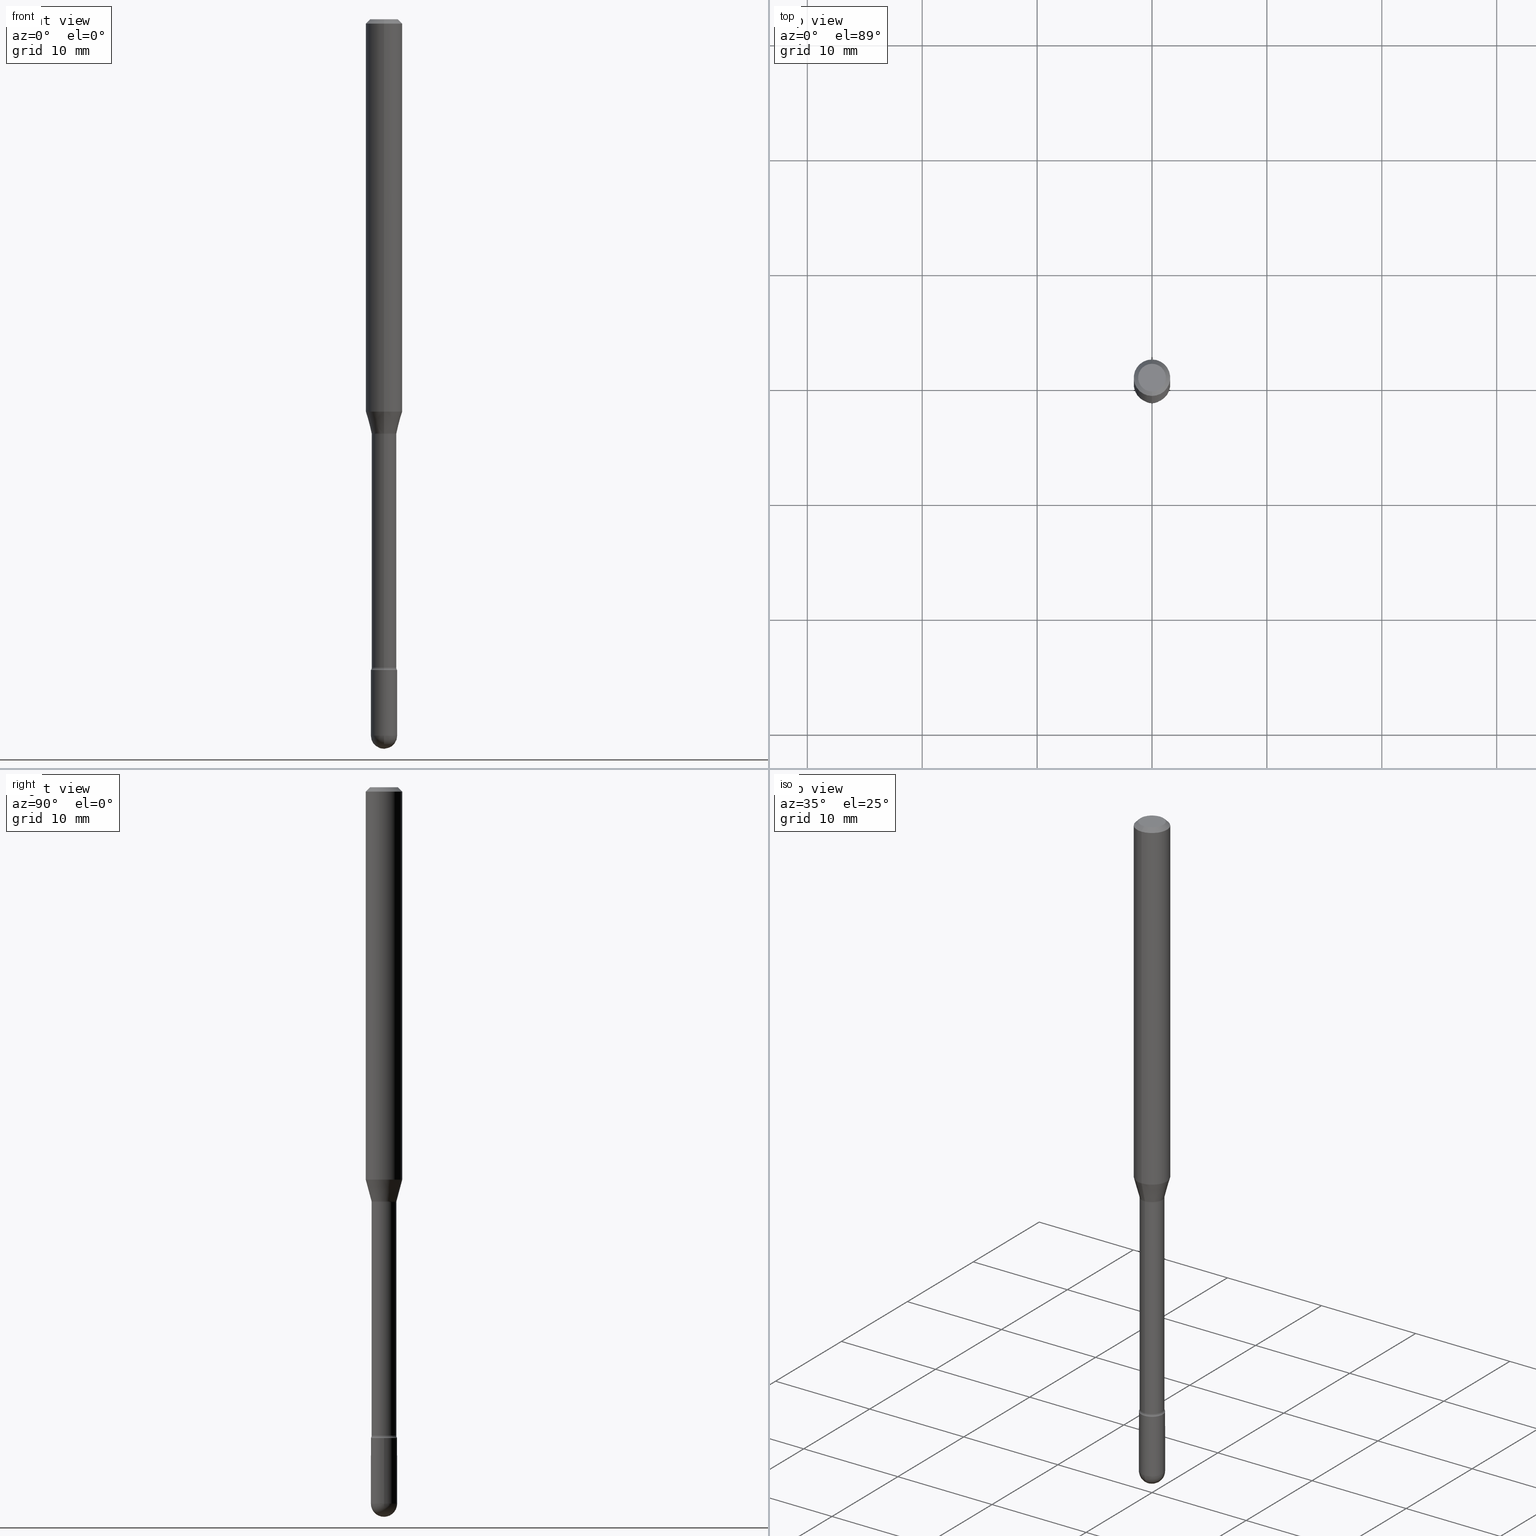
[diagram: canonical four-view strip — front | top / right | iso, engineering-drawing reading convention]
A machine part, canonical four-view strip (front | top / right | iso — engineering-drawing reading convention). The complete STEP part file that produces these views, byte-faithful:
ISO-10303-21;
HEADER;
FILE_DESCRIPTION (( 'STEP AP203' ),
    '1' );
FILE_NAME ('09824.STEP',
    '2024-04-10T01:53:31',
    ( '' ),
    ( '' ),
    'SwSTEP 2.0',
    'SolidWorks 2023',
    '' );
FILE_SCHEMA (( 'CONFIG_CONTROL_DESIGN' ));
ENDSEC;

DATA;
#1 = PERSON_AND_ORGANIZATION ( #341, #563 ) ;
#2 = DIRECTION ( 'NONE',  ( 7.105427357601001859E-15, 1.000000000000000000, 0.000000000000000000 ) ) ;
#3 = ORIENTED_EDGE ( 'NONE', *, *, #265, .T. ) ;
#4 = CARTESIAN_POINT ( 'NONE',  ( 3.741402302838760433E-16, 0.04281111260565903520, -1.418092501787273418 ) ) ;
#5 = VERTEX_POINT ( 'NONE', #234 ) ;
#6 = AXIS2_PLACEMENT_3D ( 'NONE', #30, #511, #244 ) ;
#7 = AXIS2_PLACEMENT_3D ( 'NONE', #315, #411, #20 ) ;
#8 = CARTESIAN_POINT ( 'NONE',  ( 3.288099339241768682E-29, -4.694845468268757360E-15, -1.344612573687109069 ) ) ;
#9 = EDGE_LOOP ( 'NONE', ( #116, #192, #387, #317, #392 ) ) ;
#10 = EDGE_CURVE ( 'NONE', #282, #5, #535, .T. ) ;
#11 = CARTESIAN_POINT ( 'NONE',  ( 0.04499999999999999833, -8.100236706116096837E-15, -2.229999999999999982 ) ) ;
#12 = ORIENTED_EDGE ( 'NONE', *, *, #161, .F. ) ;
#13 = CARTESIAN_POINT ( 'NONE',  ( -3.197442310919848226E-16, -0.04500000000000855399, -2.454999999999999627 ) ) ;
#14 = APPROVAL ( #211, 'UNSPECIFIED' ) ;
#15 = VERTEX_POINT ( 'NONE', #69 ) ;
#16 = CIRCLE ( 'NONE', #473, 0.01500000000000001853 ) ;
#17 = DIRECTION ( 'NONE',  ( 6.982962677686265922E-15, 1.000000000000000000, -3.483106191921935554E-15 ) ) ;
#18 = ORIENTED_EDGE ( 'NONE', *, *, #70, .T. ) ;
#19 = EDGE_CURVE ( 'NONE', #278, #358, #113, .T. ) ;
#20 = DIRECTION ( 'NONE',  ( -6.982962677686265922E-15, -1.000000000000000000, 3.491597178356629868E-15 ) ) ;
#21 = ORIENTED_EDGE ( 'NONE', *, *, #10, .T. ) ;
#22 = DIRECTION ( 'NONE',  ( -2.445468806185136597E-29, 3.491481338843145583E-15, 1.000000000000000000 ) ) ;
#23 = MECHANICAL_CONTEXT ( 'NONE', #28, 'mechanical' ) ;
#24 = ADVANCED_FACE ( 'NONE', ( #126 ), #534, .T. ) ;
#25 = CONICAL_SURFACE ( 'NONE', #103, 0.04281111260566398957, 0.2617993877991505736 ) ;
#26 = SECURITY_CLASSIFICATION ( '', '', #297 ) ;
#27 = DIRECTION ( 'NONE',  ( -1.000000000000000000, 6.982962677686265922E-15, -4.883557194083112340E-29 ) ) ;
#28 = APPLICATION_CONTEXT ( 'configuration controlled 3d designs of mechanical parts and assemblies' ) ;
#29 = DIRECTION ( 'NONE',  ( 1.000000000000000000, -6.982962677686269077E-15, 0.000000000000000000 ) ) ;
#30 = CARTESIAN_POINT ( 'NONE',  ( -1.169113584055446105E-44, 1.669184350826100908E-30, 4.780733988912460139E-16 ) ) ;
#31 = CARTESIAN_POINT ( 'NONE',  ( -4.364351673553912750E-16, -0.06250000000000005551, -0.01499999999999986587 ) ) ;
#32 = CARTESIAN_POINT ( 'NONE',  ( 6.003625919184510659E-29, -8.571586686859923311E-15, -2.455000000000000071 ) ) ;
#33 = DIRECTION ( 'NONE',  ( -2.445468806185136597E-29, 3.491481338843145583E-15, 1.000000000000000000 ) ) ;
#34 = AXIS2_PLACEMENT_3D ( 'NONE', #223, #396, #354 ) ;
#35 = DIRECTION ( 'NONE',  ( 6.982962677686265922E-15, 1.000000000000000000, -6.070773319253922996E-15 ) ) ;
#36 = AXIS2_PLACEMENT_3D ( 'NONE', #286, #68, #243 ) ;
#37 = EDGE_CURVE ( 'NONE', #269, #304, #62, .T. ) ;
#38 = PERSON_AND_ORGANIZATION_ROLE ( 'design_supplier' ) ;
#39 = DIRECTION ( 'NONE',  ( -2.445387915885210370E-29, 3.491597178356629868E-15, 1.000000000000000000 ) ) ;
#40 = ORIENTED_EDGE ( 'NONE', *, *, #305, .T. ) ;
#41 = PERSON_AND_ORGANIZATION ( #341, #563 ) ;
#42 = DIRECTION ( 'NONE',  ( -2.445387915885210370E-29, 3.491597178356629868E-15, 1.000000000000000000 ) ) ;
#43 = PERSON_AND_ORGANIZATION ( #341, #563 ) ;
#44 = ADVANCED_FACE ( 'NONE', ( #547 ), #121, .T. ) ;
#45 = LINE ( 'NONE', #219, #371 ) ;
#46 = CIRCLE ( 'NONE', #290, 0.04749999999999999362 ) ;
#47 = CIRCLE ( 'NONE', #81, 0.01499999999999998557 ) ;
#48 = AXIS2_PLACEMENT_3D ( 'NONE', #452, #56, #76 ) ;
#49 = PERSON_AND_ORGANIZATION_ROLE ( 'creator' ) ;
#50 = LINE ( 'NONE', #138, #362 ) ;
#51 = VERTEX_POINT ( 'NONE', #462 ) ;
#52 = DIRECTION ( 'NONE',  ( -4.851104656540964275E-15, -0.7071067811865500152, -0.7071067811865450192 ) ) ;
#53 = DIRECTION ( 'NONE',  ( -6.982962677686265922E-15, -1.000000000000000000, 3.491597178356629868E-15 ) ) ;
#54 = ORIENTED_EDGE ( 'NONE', *, *, #305, .F. ) ;
#55 = TOROIDAL_SURFACE ( 'NONE', #466, 0.05730000000000011473, 0.01499999999999998730 ) ;
#56 = DIRECTION ( 'NONE',  ( -2.445387915885210370E-29, 3.491597178356629868E-15, 1.000000000000000000 ) ) ;
#57 = ORIENTED_EDGE ( 'NONE', *, *, #169, .T. ) ;
#58 = CARTESIAN_POINT ( 'NONE',  ( 5.453215052424018458E-29, -7.786261707735284589E-15, -2.229999999999999982 ) ) ;
#59 = ORIENTED_EDGE ( 'NONE', *, *, #265, .F. ) ;
#60 = CARTESIAN_POINT ( 'NONE',  ( 3.005595772265228033E-16, 0.04230000000000006671, 3.303788382467604030E-16 ) ) ;
#61 = ORIENTED_EDGE ( 'NONE', *, *, #85, .F. ) ;
#62 = CIRCLE ( 'NONE', #544, 0.04229999999999999732 ) ;
#63 = AXIS2_PLACEMENT_3D ( 'NONE', #58, #277, #489 ) ;
#64 = FACE_OUTER_BOUND ( 'NONE', #355, .T. ) ;
#65 = ORIENTED_EDGE ( 'NONE', *, *, #373, .T. ) ;
#66 = DIRECTION ( 'NONE',  ( -2.445387915885210370E-29, 3.491597178356629868E-15, 1.000000000000000000 ) ) ;
#67 = CARTESIAN_POINT ( 'NONE',  ( 3.477279961957444351E-29, -4.964963155602911741E-15, -1.421974787463811118 ) ) ;
#68 = DIRECTION ( 'NONE',  ( 0.000000000000000000, 0.000000000000000000, 1.000000000000000000 ) ) ;
#69 = CARTESIAN_POINT ( 'NONE',  ( -4.364351673553584879E-16, -0.06250000000000466294, -1.344612573687108847 ) ) ;
#70 = EDGE_CURVE ( 'NONE', #304, #269, #289, .T. ) ;
#71 = CARTESIAN_POINT ( 'NONE',  ( 4.440892098500956497E-16, 0.06249999999999533706, -1.344612573687109514 ) ) ;
#72 = AXIS2_PLACEMENT_3D ( 'NONE', #8, #494, #199 ) ;
#73 = DIRECTION ( 'NONE',  ( -1.000000000000000000, 7.105427357601001070E-15, -4.926315508542082329E-29 ) ) ;
#74 =( NAMED_UNIT ( * ) PLANE_ANGLE_UNIT ( ) SI_UNIT ( $, .RADIAN. ) );
#75 = CARTESIAN_POINT ( 'NONE',  ( 5.453395437792854252E-29, -7.786003385620215150E-15, -2.229999999999999982 ) ) ;
#76 = DIRECTION ( 'NONE',  ( -6.982962677686265133E-15, -1.000000000000000000, 6.381165607227957288E-15 ) ) ;
#77 = DIRECTION ( 'NONE',  ( -6.982962677686266711E-15, -1.000000000000000000, 3.491597178356630262E-15 ) ) ;
#78 = ADVANCED_FACE ( 'NONE', ( #370 ), #423, .T. ) ;
#79 = DATE_AND_TIME ( #382, #125 ) ;
#80 = CIRCLE ( 'NONE', #325, 0.04281111260566398957 ) ;
#81 = AXIS2_PLACEMENT_3D ( 'NONE', #386, #183, #2 ) ;
#82 = PERSON_AND_ORGANIZATION ( #341, #563 ) ;
#83 = PLANE ( 'NONE',  #123 ) ;
#84 = ORIENTED_EDGE ( 'NONE', *, *, #19, .F. ) ;
#85 = EDGE_CURVE ( 'NONE', #15, #528, #172, .T. ) ;
#86 = APPROVAL_ROLE ( '' ) ;
#87 = DIRECTION ( 'NONE',  ( -2.445387915885210370E-29, 3.491597178356629868E-15, 1.000000000000000000 ) ) ;
#88 = ORIENTED_EDGE ( 'NONE', *, *, #179, .T. ) ;
#89 = DATE_AND_TIME ( #174, #439 ) ;
#90 = DIRECTION ( 'NONE',  ( -6.982962677686265922E-15, -1.000000000000000000, 3.491597178356629868E-15 ) ) ;
#91 = AXIS2_PLACEMENT_3D ( 'NONE', #301, #214, #309 ) ;
#92 = CIRCLE ( 'NONE', #467, 0.01499999999999998557 ) ;
#93 = CARTESIAN_POINT ( 'NONE',  ( 3.005595772265770868E-16, 0.04229999999999502908, -1.421974787463811563 ) ) ;
#94 = ORIENTED_EDGE ( 'NONE', *, *, #557, .F. ) ;
#95 = CARTESIAN_POINT ( 'NONE',  ( 3.467786267478024003E-29, -4.951407777889136933E-15, -1.418092501787273196 ) ) ;
#96 = ORIENTED_EDGE ( 'NONE', *, *, #336, .T. ) ;
#97 = EDGE_CURVE ( 'NONE', #405, #358, #561, .T. ) ;
#98 = FACE_OUTER_BOUND ( 'NONE', #562, .T. ) ;
#99 = EDGE_LOOP ( 'NONE', ( #497, #369, #493, #236 ) ) ;
#100 = AXIS2_PLACEMENT_3D ( 'NONE', #459, #470, #506 ) ;
#101 = APPROVAL ( #427, 'UNSPECIFIED' ) ;
#102 = CIRCLE ( 'NONE', #114, 0.04749999999999999362 ) ;
#103 = AXIS2_PLACEMENT_3D ( 'NONE', #322, #449, #311 ) ;
#104 = DIRECTION ( 'NONE',  ( -2.445387915885210370E-29, 3.491597178356629473E-15, 1.000000000000000000 ) ) ;
#105 = PRODUCT_DEFINITION_SHAPE ( 'NONE', 'NONE',  #545 ) ;
#106 = ORIENTED_EDGE ( 'NONE', *, *, #398, .T. ) ;
#107 = ADVANCED_FACE ( 'NONE', ( #205 ), #377, .T. ) ;
#108 = PLANE ( 'NONE',  #237 ) ;
#109 = ORIENTED_EDGE ( 'NONE', *, *, #128, .T. ) ;
#110 = CC_DESIGN_PERSON_AND_ORGANIZATION_ASSIGNMENT ( #389, #137, ( #26 ) ) ;
#111 = DIRECTION ( 'NONE',  ( 1.000000000000000000, -6.982962677686266711E-15, 4.876176775795935793E-29 ) ) ;
#112 = ORIENTED_EDGE ( 'NONE', *, *, #523, .F. ) ;
#113 = CIRCLE ( 'NONE', #424, 0.04499999999999999833 ) ;
#114 = AXIS2_PLACEMENT_3D ( 'NONE', #513, #296, #77 ) ;
#115 =( NAMED_UNIT ( * ) SI_UNIT ( $, .STERADIAN. ) SOLID_ANGLE_UNIT ( ) );
#116 = ORIENTED_EDGE ( 'NONE', *, *, #365, .F. ) ;
#117 = APPLICATION_PROTOCOL_DEFINITION ( 'international standard', 'config_control_design', 1994, #28 ) ;
#118 = CARTESIAN_POINT ( 'NONE',  ( 6.003625919184510659E-29, -8.571586686859921733E-15, -2.455000000000000071 ) ) ;
#119 = EDGE_CURVE ( 'NONE', #501, #310, #80, .T. ) ;
#120 = DIRECTION ( 'NONE',  ( 1.000000000000000000, -6.982962677686269077E-15, 0.000000000000000000 ) ) ;
#121 = CYLINDRICAL_SURFACE ( 'NONE', #6, 0.04230000000000006671 ) ;
#122 = AXIS2_PLACEMENT_3D ( 'NONE', #32, #27, #35 ) ;
#123 = AXIS2_PLACEMENT_3D ( 'NONE', #221, #217, #480 ) ;
#124 = DATE_AND_TIME ( #509, #229 ) ;
#125 = LOCAL_TIME ( 21, 53, 31.00000000000000000, #338 ) ;
#126 = FACE_OUTER_BOUND ( 'NONE', #189, .T. ) ;
#127 =( CONVERSION_BASED_UNIT ( 'INCH', #157 ) LENGTH_UNIT ( ) NAMED_UNIT ( #333 ) );
#128 = EDGE_CURVE ( 'NONE', #522, #148, #46, .T. ) ;
#129 = DIRECTION ( 'NONE',  ( -2.445387915885210370E-29, 3.491597178356629473E-15, 1.000000000000000000 ) ) ;
#130 = CYLINDRICAL_SURFACE ( 'NONE', #447, 0.04230000000000006671 ) ;
#131 = CIRCLE ( 'NONE', #537, 0.04499999999999999833 ) ;
#132 = EDGE_CURVE ( 'NONE', #358, #239, #185, .T. ) ;
#133 = UNCERTAINTY_MEASURE_WITH_UNIT (LENGTH_MEASURE( 1.000000000000000082E-05 ), #127, 'distance_accuracy_value', 'NONE');
#134 = APPROVAL_ROLE ( '' ) ;
#135 = CARTESIAN_POINT ( 'NONE',  ( -4.287811248607203282E-16, -0.06250000000000005551, -0.01499999999999986587 ) ) ;
#136 = ORIENTED_EDGE ( 'NONE', *, *, #566, .T. ) ;
#137 = PERSON_AND_ORGANIZATION_ROLE ( 'classification_officer' ) ;
#138 = CARTESIAN_POINT ( 'NONE',  ( 4.364351673553919652E-16, 0.06249999999999995143, -0.01500000000000030129 ) ) ;
#139 = ORIENTED_EDGE ( 'NONE', *, *, #144, .T. ) ;
#140 = CYLINDRICAL_SURFACE ( 'NONE', #91, 0.04499999999999999833 ) ;
#141 = AXIS2_PLACEMENT_3D ( 'NONE', #155, #359, #408 ) ;
#142 = VERTEX_POINT ( 'NONE', #468 ) ;
#143 = APPROVAL_PERSON_ORGANIZATION ( #438, #14, #134 ) ;
#144 = EDGE_CURVE ( 'NONE', #405, #364, #352, .T. ) ;
#145 = DIRECTION ( 'NONE',  ( -2.445387915885210370E-29, 3.491597178356629868E-15, 1.000000000000000000 ) ) ;
#146 = EDGE_LOOP ( 'NONE', ( #302, #195, #261, #228 ) ) ;
#147 = CARTESIAN_POINT ( 'NONE',  ( -2.953793212661295465E-16, -0.04230000000000006671, 6.257679595357316741E-16 ) ) ;
#148 = VERTEX_POINT ( 'NONE', #209 ) ;
#149 = FACE_OUTER_BOUND ( 'NONE', #271, .T. ) ;
#150 = ORIENTED_EDGE ( 'NONE', *, *, #119, .T. ) ;
#151 = AXIS2_PLACEMENT_3D ( 'NONE', #197, #312, #17 ) ;
#152 = DIRECTION ( 'NONE',  ( -2.445387915885210370E-29, 3.491597178356629473E-15, 1.000000000000000000 ) ) ;
#153 = ORIENTED_EDGE ( 'NONE', *, *, #523, .T. ) ;
#154 = CC_DESIGN_DATE_AND_TIME_ASSIGNMENT ( #213, #220, ( #545 ) ) ;
#155 = CARTESIAN_POINT ( 'NONE',  ( 5.453395437792854252E-29, -7.786003385620215150E-15, -2.229999999999999982 ) ) ;
#156 = EDGE_LOOP ( 'NONE', ( #263, #200, #3, #367 ) ) ;
#157 = LENGTH_MEASURE_WITH_UNIT ( LENGTH_MEASURE( 0.02539999999999999897 ), #502 );
#158 = EDGE_LOOP ( 'NONE', ( #541, #543, #395, #61 ) ) ;
#159 = LOCAL_TIME ( 21, 53, 31.00000000000000000, #344 ) ;
#160 = FACE_OUTER_BOUND ( 'NONE', #158, .T. ) ;
#161 = EDGE_CURVE ( 'NONE', #239, #351, #554, .T. ) ;
#162 = DIRECTION ( 'NONE',  ( -2.445468806185136877E-29, 3.491481338843145188E-15, 1.000000000000000000 ) ) ;
#163 = DIRECTION ( 'NONE',  ( -2.445468806185136597E-29, 3.491481338843145583E-15, 1.000000000000000000 ) ) ;
#164 = DIRECTION ( 'NONE',  ( 6.982962677686265133E-15, 1.000000000000000000, 0.000000000000000000 ) ) ;
#165 = APPROVAL ( #375, 'UNSPECIFIED' ) ;
#166 = ADVANCED_BREP_SHAPE_REPRESENTATION ( '09824', ( #508, #505, #36 ), #257 ) ;
#167 = COORDINATED_UNIVERSAL_TIME_OFFSET ( 5, 0, .BEHIND. ) ;
#168 = DIRECTION ( 'NONE',  ( 1.000000000000000000, -6.982962677686265922E-15, 4.883557194083112340E-29 ) ) ;
#169 = EDGE_CURVE ( 'NONE', #148, #522, #102, .T. ) ;
#170 = VECTOR ( 'NONE', #406, 39.37007874015748143 ) ;
#171 = LINE ( 'NONE', #324, #512 ) ;
#172 = LINE ( 'NONE', #288, #254 ) ;
#173 = DIRECTION ( 'NONE',  ( -6.982962677686266711E-15, -1.000000000000000000, 6.458269488567998169E-15 ) ) ;
#174 = CALENDAR_DATE ( 2024, 9, 4 ) ;
#175 = CARTESIAN_POINT ( 'NONE',  ( -2.953793212660942943E-16, -0.04230000000000496557, -1.421974787463810896 ) ) ;
#176 = EDGE_LOOP ( 'NONE', ( #323, #139, #495, #215 ) ) ;
#177 = AXIS2_PLACEMENT_3D ( 'NONE', #258, #340, #433 ) ;
#178 = LINE ( 'NONE', #135, #526 ) ;
#179 = EDGE_CURVE ( 'NONE', #310, #304, #16, .T. ) ;
#180 = EDGE_LOOP ( 'NONE', ( #313, #40, #476, #280 ) ) ;
#181 = CARTESIAN_POINT ( 'NONE',  ( 3.477394985924490148E-29, -4.964798434735345074E-15, -1.421974787463811118 ) ) ;
#182 = ORIENTED_EDGE ( 'NONE', *, *, #557, .T. ) ;
#183 = DIRECTION ( 'NONE',  ( 1.000000000000000000, -7.105427357601001070E-15, 4.926316927166976065E-29 ) ) ;
#184 = ORIENTED_EDGE ( 'NONE', *, *, #365, .T. ) ;
#185 = CIRCLE ( 'NONE', #498, 0.04499999999999999833 ) ;
#186 = APPLICATION_CONTEXT ( 'configuration controlled 3d designs of mechanical parts and assemblies' ) ;
#187 = ORIENTED_EDGE ( 'NONE', *, *, #222, .F. ) ;
#188 = CARTESIAN_POINT ( 'NONE',  ( -2.989484015155409328E-16, -0.04281111260566893700, -1.418092501787272974 ) ) ;
#189 = EDGE_LOOP ( 'NONE', ( #54, #565, #320, #182 ) ) ;
#190 = FACE_OUTER_BOUND ( 'NONE', #530, .T. ) ;
#191 = EDGE_CURVE ( 'NONE', #5, #282, #210, .T. ) ;
#192 = ORIENTED_EDGE ( 'NONE', *, *, #19, .T. ) ;
#193 = CARTESIAN_POINT ( 'NONE',  ( -0.04499999999999999833, -7.859050805148022285E-15, -2.229999999999999982 ) ) ;
#194 = AXIS2_PLACEMENT_3D ( 'NONE', #75, #330, #250 ) ;
#195 = ORIENTED_EDGE ( 'NONE', *, *, #191, .T. ) ;
#196 = CIRCLE ( 'NONE', #141, 0.04499999999999999833 ) ;
#197 = CARTESIAN_POINT ( 'NONE',  ( 3.668081873827835804E-31, -5.237395767534973718E-17, -0.01500000000000008271 ) ) ;
#198 = ORIENTED_EDGE ( 'NONE', *, *, #299, .F. ) ;
#199 = DIRECTION ( 'NONE',  ( -6.982962677686265922E-15, -1.000000000000000000, 4.370956789862821150E-15 ) ) ;
#200 = ORIENTED_EDGE ( 'NONE', *, *, #119, .F. ) ;
#201 = ADVANCED_FACE ( 'NONE', ( #484 ), #283, .F. ) ;
#202 = DIRECTION ( 'NONE',  ( 7.105427357601001859E-15, 1.000000000000000000, 0.000000000000000000 ) ) ;
#203 = CIRCLE ( 'NONE', #48, 0.04281111260566398957 ) ;
#204 = CIRCLE ( 'NONE', #390, 0.04499999999999999833 ) ;
#205 = FACE_OUTER_BOUND ( 'NONE', #488, .T. ) ;
#206 = PERSON_AND_ORGANIZATION ( #341, #563 ) ;
#207 = DIRECTION ( 'NONE',  ( -7.105427357601001070E-15, -1.000000000000000000, 0.000000000000000000 ) ) ;
#208 = CARTESIAN_POINT ( 'NONE',  ( -4.001237614313694707E-16, -0.05730000000000787241, -2.221414547187247290 ) ) ;
#209 = CARTESIAN_POINT ( 'NONE',  ( -3.773273898774340269E-16, -0.04749999999999999362, 8.310933627728505171E-17 ) ) ;
#210 = CIRCLE ( 'NONE', #246, 0.04230000000000012916 ) ;
#211 = APPROVAL_STATUS ( 'not_yet_approved' ) ;
#212 = CARTESIAN_POINT ( 'NONE',  ( 3.467786267478024003E-29, -4.951407777889136933E-15, -1.418092501787273196 ) ) ;
#213 = DATE_AND_TIME ( #267, #159 ) ;
#214 = DIRECTION ( 'NONE',  ( -2.445468806185136597E-29, 3.491481338843145583E-15, 1.000000000000000000 ) ) ;
#215 = ORIENTED_EDGE ( 'NONE', *, *, #132, .F. ) ;
#216 = SHAPE_DEFINITION_REPRESENTATION ( #105, #166 ) ;
#217 = DIRECTION ( 'NONE',  ( 2.445387915885210370E-29, -3.491597178356629473E-15, -1.000000000000000000 ) ) ;
#218 = AXIS2_PLACEMENT_3D ( 'NONE', #431, #560, #521 ) ;
#219 = CARTESIAN_POINT ( 'NONE',  ( 3.041912507176566342E-16, 0.04281111260565903520, -1.418092501787273418 ) ) ;
#220 = DATE_TIME_ROLE ( 'creation_date' ) ;
#221 = CARTESIAN_POINT ( 'NONE',  ( 3.316907271900976096E-16, 0.04749999999999999362, 3.181506862635567866E-17 ) ) ;
#222 = EDGE_CURVE ( 'NONE', #15, #532, #227, .T. ) ;
#223 = CARTESIAN_POINT ( 'NONE',  ( 6.003625919184510659E-29, -8.571586686859923311E-15, -2.455000000000000071 ) ) ;
#224 = ORIENTED_EDGE ( 'NONE', *, *, #10, .F. ) ;
#225 = CYLINDRICAL_SURFACE ( 'NONE', #7, 0.06250000000000000000 ) ;
#226 = AXIS2_PLACEMENT_3D ( 'NONE', #407, #539, #549 ) ;
#227 = CIRCLE ( 'NONE', #425, 0.06250000000000000000 ) ;
#228 = ORIENTED_EDGE ( 'NONE', *, *, #70, .F. ) ;
#229 = LOCAL_TIME ( 21, 53, 31.00000000000000000, #167 ) ;
#230 = EDGE_CURVE ( 'NONE', #522, #51, #50, .T. ) ;
#231 = DIRECTION ( 'NONE',  ( -2.445387915885210370E-29, 3.491597178356629868E-15, 1.000000000000000000 ) ) ;
#232 = ORIENTED_EDGE ( 'NONE', *, *, #398, .F. ) ;
#233 = DIRECTION ( 'NONE',  ( -6.982962677686265133E-15, -1.000000000000000000, 6.381165607227957288E-15 ) ) ;
#234 = CARTESIAN_POINT ( 'NONE',  ( 3.101519041593385169E-16, 0.04229999999999237148, -2.221414547187247734 ) ) ;
#235 = CARTESIAN_POINT ( 'NONE',  ( 4.440892098500625669E-16, 0.06250000000000000000, 2.598485752439566965E-16 ) ) ;
#236 = ORIENTED_EDGE ( 'NONE', *, *, #566, .F. ) ;
#237 = AXIS2_PLACEMENT_3D ( 'NONE', #492, #104, #279 ) ;
#238 = LINE ( 'NONE', #147, #255 ) ;
#239 = VERTEX_POINT ( 'NONE', #303 ) ;
#240 = DIRECTION ( 'NONE',  ( -6.982962677686266711E-15, -1.000000000000000000, 0.000000000000000000 ) ) ;
#241 = CARTESIAN_POINT ( 'NONE',  ( 5.432220289863311554E-29, -7.756284764919363246E-15, -2.221414547187247290 ) ) ;
#242 = CC_DESIGN_PERSON_AND_ORGANIZATION_ASSIGNMENT ( #82, #38, ( #426 ) ) ;
#243 = DIRECTION ( 'NONE',  ( 1.000000000000000000, 0.000000000000000000, 0.000000000000000000 ) ) ;
#244 = DIRECTION ( 'NONE',  ( -6.982962677686266711E-15, -1.000000000000000000, 3.491597178356629473E-15 ) ) ;
#245 = AXIS2_PLACEMENT_3D ( 'NONE', #465, #415, #173 ) ;
#246 = AXIS2_PLACEMENT_3D ( 'NONE', #241, #413, #329 ) ;
#247 = CC_DESIGN_APPROVAL ( #165, ( #545 ) ) ;
#248 = CARTESIAN_POINT ( 'NONE',  ( 6.003625919184510659E-29, -8.571586686859921733E-15, -2.455000000000000071 ) ) ;
#249 = ADVANCED_FACE ( 'NONE', ( #524 ), #140, .T. ) ;
#250 = DIRECTION ( 'NONE',  ( 1.000000000000000000, -6.982962677686265922E-15, 4.876176775795935793E-29 ) ) ;
#251 = ADVANCED_FACE ( 'NONE', ( #266 ), #130, .T. ) ;
#252 = DIRECTION ( 'NONE',  ( 1.000000000000000000, -6.982962677686269077E-15, 0.000000000000000000 ) ) ;
#253 = CARTESIAN_POINT ( 'NONE',  ( 6.003625919184510659E-29, -8.571586686859921733E-15, -2.455000000000000071 ) ) ;
#254 = VECTOR ( 'NONE', #129, 39.37007874015748143 ) ;
#255 = VECTOR ( 'NONE', #531, 39.37007874015748143 ) ;
#256 = APPROVAL_DATE_TIME ( #393, #14 ) ;
#257 =( GEOMETRIC_REPRESENTATION_CONTEXT ( 3 ) GLOBAL_UNCERTAINTY_ASSIGNED_CONTEXT ( ( #133 ) ) GLOBAL_UNIT_ASSIGNED_CONTEXT ( ( #127, #74, #115 ) ) REPRESENTATION_CONTEXT ( 'NONE', 'WORKASPACE' ) );
#258 = CARTESIAN_POINT ( 'NONE',  ( 3.668081873827835804E-31, -5.237395767534973718E-17, -0.01500000000000008271 ) ) ;
#259 = ADVANCED_FACE ( 'NONE', ( #350 ), #83, .F. ) ;
#260 = DIRECTION ( 'NONE',  ( -2.445387915885210370E-29, 3.491597178356629868E-15, 1.000000000000000000 ) ) ;
#261 = ORIENTED_EDGE ( 'NONE', *, *, #421, .T. ) ;
#262 = CARTESIAN_POINT ( 'NONE',  ( -1.169113584055446105E-44, 1.669184350826100908E-30, 4.780733988912460139E-16 ) ) ;
#263 = ORIENTED_EDGE ( 'NONE', *, *, #179, .F. ) ;
#264 = CONICAL_SURFACE ( 'NONE', #343, 0.04281111260566398957, 0.2617993877991505736 ) ;
#265 = EDGE_CURVE ( 'NONE', #501, #269, #436, .T. ) ;
#266 = FACE_OUTER_BOUND ( 'NONE', #397, .T. ) ;
#267 = CALENDAR_DATE ( 2024, 9, 4 ) ;
#268 = DIRECTION ( 'NONE',  ( -6.982962677686265922E-15, -1.000000000000000000, 3.491597178356629868E-15 ) ) ;
#269 = VERTEX_POINT ( 'NONE', #175 ) ;
#270 = LINE ( 'NONE', #235, #517 ) ;
#271 = EDGE_LOOP ( 'NONE', ( #520, #106, #326, #94 ) ) ;
#272 = CARTESIAN_POINT ( 'NONE',  ( 3.142333204959418864E-16, 0.04499999999999140798, -2.455000000000000071 ) ) ;
#273 = CLOSED_SHELL ( 'NONE', ( #356, #251, #318, #346, #542, #414, #499, #444, #24, #259, #451, #276, #44, #201 ) ) ;
#274 = AXIS2_PLACEMENT_3D ( 'NONE', #454, #231, #527 ) ;
#275 = ORIENTED_EDGE ( 'NONE', *, *, #553, .F. ) ;
#276 = ADVANCED_FACE ( 'NONE', ( #428 ), #388, .F. ) ;
#277 = DIRECTION ( 'NONE',  ( -2.445387915885210370E-29, 3.491597178356629868E-15, 1.000000000000000000 ) ) ;
#278 = VERTEX_POINT ( 'NONE', #442 ) ;
#279 = DIRECTION ( 'NONE',  ( -6.982962677686265922E-15, -1.000000000000000000, 3.491597178356629473E-15 ) ) ;
#280 = ORIENTED_EDGE ( 'NONE', *, *, #230, .F. ) ;
#281 = CARTESIAN_POINT ( 'NONE',  ( 6.115596139613495537E-29, -8.725947891809782708E-15, -2.500000000000000000 ) ) ;
#282 = VERTEX_POINT ( 'NONE', #298 ) ;
#283 = TOROIDAL_SURFACE ( 'NONE', #327, 0.05730000000000000371, 0.01500000000000002373 ) ;
#284 = CARTESIAN_POINT ( 'NONE',  ( 6.003625919184510659E-29, -8.571586686859921733E-15, -2.455000000000000071 ) ) ;
#285 = CARTESIAN_POINT ( 'NONE',  ( 4.071409875905721427E-16, 0.05729999999999503546, -1.421974787463811563 ) ) ;
#286 = CARTESIAN_POINT ( 'NONE',  ( 0.000000000000000000, 0.000000000000000000, 0.000000000000000000 ) ) ;
#287 = DIRECTION ( 'NONE',  ( 1.000000000000000000, -7.105427357601001070E-15, 4.926316927166976065E-29 ) ) ;
#288 = CARTESIAN_POINT ( 'NONE',  ( -4.364351673553916201E-16, -0.06250000000000000000, 6.962982225385354793E-16 ) ) ;
#289 = CIRCLE ( 'NONE', #245, 0.04229999999999999732 ) ;
#290 = AXIS2_PLACEMENT_3D ( 'NONE', #376, #374, #555 ) ;
#291 = PRODUCT_RELATED_PRODUCT_CATEGORY ( 'detail', '', ( #463 ) ) ;
#292 = AXIS2_PLACEMENT_3D ( 'NONE', #546, #66, #461 ) ;
#293 = APPROVAL_DATE_TIME ( #124, #165 ) ;
#294 = DIRECTION ( 'NONE',  ( -2.445387915885210370E-29, 3.491597178356629868E-15, 1.000000000000000000 ) ) ;
#295 = DIRECTION ( 'NONE',  ( -2.445468806185136597E-29, 3.491481338843145583E-15, 1.000000000000000000 ) ) ;
#296 = DIRECTION ( 'NONE',  ( -2.445387915885210370E-29, 3.491597178356629868E-15, 1.000000000000000000 ) ) ;
#297 = SECURITY_CLASSIFICATION_LEVEL ( 'unclassified' ) ;
#298 = CARTESIAN_POINT ( 'NONE',  ( -2.953793212660756081E-16, -0.04230000000000788685, -2.221414547187247290 ) ) ;
#299 = EDGE_CURVE ( 'NONE', #5, #450, #47, .T. ) ;
#300 = CIRCLE ( 'NONE', #177, 0.06250000000000000000 ) ;
#301 = CARTESIAN_POINT ( 'NONE',  ( 0.000000000000000000, 0.000000000000000000, 0.000000000000000000 ) ) ;
#302 = ORIENTED_EDGE ( 'NONE', *, *, #487, .F. ) ;
#303 = CARTESIAN_POINT ( 'NONE',  ( 0.04499999999999999833, -8.493028356735950128E-15, -2.455000000000000071 ) ) ;
#304 = VERTEX_POINT ( 'NONE', #93 ) ;
#305 = EDGE_CURVE ( 'NONE', #148, #528, #178, .T. ) ;
#306 = DIRECTION ( 'NONE',  ( 4.937700262164548042E-15, 0.7071067811865451302, -0.7071067811865499042 ) ) ;
#307 = ORIENTED_EDGE ( 'NONE', *, *, #553, .T. ) ;
#308 = AXIS2_PLACEMENT_3D ( 'NONE', #361, #319, #111 ) ;
#309 = DIRECTION ( 'NONE',  ( 1.000000000000000000, -6.982962677686266711E-15, 4.876176775795935793E-29 ) ) ;
#310 = VERTEX_POINT ( 'NONE', #4 ) ;
#311 = DIRECTION ( 'NONE',  ( -6.982962677686265133E-15, -1.000000000000000000, 6.381165607227957288E-15 ) ) ;
#312 = DIRECTION ( 'NONE',  ( 2.445387915885210370E-29, -3.491597178356629868E-15, -1.000000000000000000 ) ) ;
#313 = ORIENTED_EDGE ( 'NONE', *, *, #169, .F. ) ;
#314 = ADVANCED_FACE ( 'NONE', ( #345 ), #472, .T. ) ;
#315 = CARTESIAN_POINT ( 'NONE',  ( -1.169113584055446105E-44, 1.669184350826100908E-30, 4.780733988912460139E-16 ) ) ;
#316 = AXIS2_PLACEMENT_3D ( 'NONE', #503, #168, #164 ) ;
#317 = ORIENTED_EDGE ( 'NONE', *, *, #161, .T. ) ;
#318 = ADVANCED_FACE ( 'NONE', ( #478 ), #55, .F. ) ;
#319 = DIRECTION ( 'NONE',  ( -2.445468806185136597E-29, 3.491481338843145583E-15, 1.000000000000000000 ) ) ;
#320 = ORIENTED_EDGE ( 'NONE', *, *, #230, .T. ) ;
#321 = EDGE_CURVE ( 'NONE', #528, #51, #300, .T. ) ;
#322 = CARTESIAN_POINT ( 'NONE',  ( 3.467786267478024003E-29, -4.951407777889136933E-15, -1.418092501787273196 ) ) ;
#323 = ORIENTED_EDGE ( 'NONE', *, *, #97, .F. ) ;
#324 = CARTESIAN_POINT ( 'NONE',  ( -2.989484015155409328E-16, -0.04281111260566893700, -1.418092501787272974 ) ) ;
#325 = AXIS2_PLACEMENT_3D ( 'NONE', #212, #294, #420 ) ;
#326 = ORIENTED_EDGE ( 'NONE', *, *, #85, .T. ) ;
#327 = AXIS2_PLACEMENT_3D ( 'NONE', #181, #260, #90 ) ;
#328 = DIRECTION ( 'NONE',  ( -1.000000000000000000, 6.982962677686265922E-15, -4.883557194083112340E-29 ) ) ;
#329 = DIRECTION ( 'NONE',  ( -6.982962677686266711E-15, -1.000000000000000000, 6.458269488567978448E-15 ) ) ;
#330 = DIRECTION ( 'NONE',  ( -2.438088387897960049E-29, 3.491481338843145188E-15, 1.000000000000000000 ) ) ;
#331 = CARTESIAN_POINT ( 'NONE',  ( 3.840629472727447874E-16, 0.04749999999999999362, -2.485923956665947374E-16 ) ) ;
#332 = DIRECTION ( 'NONE',  ( 1.000000000000000000, -6.982962677686269077E-15, 0.000000000000000000 ) ) ;
#333 = DIMENSIONAL_EXPONENTS ( 1.000000000000000000, 0.000000000000000000, 0.000000000000000000, 0.000000000000000000, 0.000000000000000000, 0.000000000000000000, 0.000000000000000000 ) ;
#334 = DIRECTION ( 'NONE',  ( -1.807323732225332111E-15, -0.2588190451025184635, 0.9659258262890689783 ) ) ;
#335 = CARTESIAN_POINT ( 'NONE',  ( 0.04499999999999999833, -3.142333204958819823E-16, 2.194279549108170967E-30 ) ) ;
#336 = EDGE_CURVE ( 'NONE', #310, #532, #45, .T. ) ;
#337 = DIRECTION ( 'NONE',  ( 1.000000000000000000, -6.982962677686269077E-15, 0.000000000000000000 ) ) ;
#338 = COORDINATED_UNIVERSAL_TIME_OFFSET ( 5, 0, .BEHIND. ) ;
#339 = CC_DESIGN_PERSON_AND_ORGANIZATION_ASSIGNMENT ( #43, #49, ( #545 ) ) ;
#340 = DIRECTION ( 'NONE',  ( -2.445387915885210370E-29, 3.491597178356629868E-15, 1.000000000000000000 ) ) ;
#341 = PERSON ( 'UNSPECIFIED', 'UNSPECIFIED', 'UNSPECIFIED', ('UNSPECIFIED'), ('UNSPECIFIED'), ('UNSPECIFIED') ) ;
#342 = CLOSED_SHELL ( 'NONE', ( #249, #78, #107, #314, #385 ) ) ;
#343 = AXIS2_PLACEMENT_3D ( 'NONE', #95, #538, #233 ) ;
#344 = COORDINATED_UNIVERSAL_TIME_OFFSET ( 5, 0, .BEHIND. ) ;
#345 = FACE_OUTER_BOUND ( 'NONE', #176, .T. ) ;
#346 = ADVANCED_FACE ( 'NONE', ( #564 ), #378, .T. ) ;
#347 = DIRECTION ( 'NONE',  ( -2.445387915885210370E-29, 3.491597178356629868E-15, 1.000000000000000000 ) ) ;
#348 = ORIENTED_EDGE ( 'NONE', *, *, #507, .T. ) ;
#349 = CALENDAR_DATE ( 2024, 9, 4 ) ;
#350 = FACE_OUTER_BOUND ( 'NONE', #412, .T. ) ;
#351 = VERTEX_POINT ( 'NONE', #11 ) ;
#352 = CIRCLE ( 'NONE', #316, 0.04499999999999996364 ) ;
#353 = CIRCLE ( 'NONE', #437, 0.04499999999999999833 ) ;
#354 = DIRECTION ( 'NONE',  ( 6.982962677686265922E-15, 1.000000000000000000, -6.070773319253922996E-15 ) ) ;
#355 = EDGE_LOOP ( 'NONE', ( #150, #96, #187, #112 ) ) ;
#356 = ADVANCED_FACE ( 'NONE', ( #190 ), #491, .F. ) ;
#357 = CYLINDRICAL_SURFACE ( 'NONE', #308, 0.04499999999999999833 ) ;
#358 = VERTEX_POINT ( 'NONE', #13 ) ;
#359 = DIRECTION ( 'NONE',  ( -2.445468806185136597E-29, 3.491481338843145583E-15, 1.000000000000000000 ) ) ;
#360 = EDGE_LOOP ( 'NONE', ( #446, #434, #84, #275 ) ) ;
#361 = CARTESIAN_POINT ( 'NONE',  ( 0.000000000000000000, 0.000000000000000000, 0.000000000000000000 ) ) ;
#362 = VECTOR ( 'NONE', #306, 39.37007874015748143 ) ;
#363 = CIRCLE ( 'NONE', #72, 0.06250000000000000000 ) ;
#364 = VERTEX_POINT ( 'NONE', #272 ) ;
#365 = EDGE_CURVE ( 'NONE', #278, #485, #486, .T. ) ;
#366 = CARTESIAN_POINT ( 'NONE',  ( 3.197442310920995032E-16, 0.04499999999999219208, -2.230000000000000426 ) ) ;
#367 = ORIENTED_EDGE ( 'NONE', *, *, #37, .T. ) ;
#368 = CYLINDRICAL_SURFACE ( 'NONE', #448, 0.06250000000000000000 ) ;
#369 = ORIENTED_EDGE ( 'NONE', *, *, #299, .T. ) ;
#370 = FACE_OUTER_BOUND ( 'NONE', #360, .T. ) ;
#371 = VECTOR ( 'NONE', #391, 39.37007874015748143 ) ;
#372 = APPROVAL_PERSON_ORGANIZATION ( #206, #165, #551 ) ;
#373 = EDGE_CURVE ( 'NONE', #485, #351, #196, .T. ) ;
#374 = DIRECTION ( 'NONE',  ( -2.445387915885210370E-29, 3.491597178356629868E-15, 1.000000000000000000 ) ) ;
#375 = APPROVAL_STATUS ( 'not_yet_approved' ) ;
#376 = CARTESIAN_POINT ( 'NONE',  ( 2.022964653565432251E-45, -2.889554714047055312E-31, -8.274152969465485517E-17 ) ) ;
#377 = PLANE ( 'NONE',  #194 ) ;
#378 = CONICAL_SURFACE ( 'NONE', #151, 0.06250000000000000000, 0.7853981633974483900 ) ;
#379 = CC_DESIGN_APPROVAL ( #14, ( #26 ) ) ;
#380 = DIRECTION ( 'NONE',  ( -6.982962677686266711E-15, -1.000000000000000000, 6.458269488567998169E-15 ) ) ;
#381 = CC_DESIGN_PERSON_AND_ORGANIZATION_ASSIGNMENT ( #418, #504, ( #463 ) ) ;
#382 = CALENDAR_DATE ( 2024, 9, 4 ) ;
#383 = CARTESIAN_POINT ( 'NONE',  ( 5.432399980752294225E-29, -7.756027437338970612E-15, -2.221414547187247734 ) ) ;
#384 = ORIENTED_EDGE ( 'NONE', *, *, #336, .F. ) ;
#385 = ADVANCED_FACE ( 'NONE', ( #529 ), #357, .T. ) ;
#386 = CARTESIAN_POINT ( 'NONE',  ( 4.071409875905925052E-16, 0.05729999999999235011, -2.221414547187248179 ) ) ;
#387 = ORIENTED_EDGE ( 'NONE', *, *, #132, .T. ) ;
#388 = TOROIDAL_SURFACE ( 'NONE', #536, 0.05730000000000011473, 0.01499999999999998730 ) ;
#389 = PERSON_AND_ORGANIZATION ( #341, #563 ) ;
#390 = AXIS2_PLACEMENT_3D ( 'NONE', #248, #295, #29 ) ;
#391 = DIRECTION ( 'NONE',  ( 1.839019923739602287E-15, 0.2588190451025252359, 0.9659258262890670910 ) ) ;
#392 = ORIENTED_EDGE ( 'NONE', *, *, #373, .F. ) ;
#393 = DATE_AND_TIME ( #349, #456 ) ;
#394 = CARTESIAN_POINT ( 'NONE',  ( 5.432399980752294225E-29, -7.756027437338970612E-15, -2.221414547187247734 ) ) ;
#395 = ORIENTED_EDGE ( 'NONE', *, *, #321, .F. ) ;
#396 = DIRECTION ( 'NONE',  ( -1.000000000000000000, 6.982962677686265922E-15, -4.883557194083112340E-29 ) ) ;
#397 = EDGE_LOOP ( 'NONE', ( #21, #410, #432, #490 ) ) ;
#398 = EDGE_CURVE ( 'NONE', #532, #15, #363, .T. ) ;
#399 = CIRCLE ( 'NONE', #274, 0.04499999999999999833 ) ;
#400 = CIRCLE ( 'NONE', #292, 0.06250000000000000000 ) ;
#401 = LINE ( 'NONE', #60, #510 ) ;
#402 = ORIENTED_EDGE ( 'NONE', *, *, #516, .T. ) ;
#403 = CC_DESIGN_PERSON_AND_ORGANIZATION_ASSIGNMENT ( #41, #556, ( #426 ) ) ;
#404 = FACE_OUTER_BOUND ( 'NONE', #479, .T. ) ;
#405 = VERTEX_POINT ( 'NONE', #281 ) ;
#406 = DIRECTION ( 'NONE',  ( -2.445468806185136877E-29, 3.491481338843145188E-15, 1.000000000000000000 ) ) ;
#407 = CARTESIAN_POINT ( 'NONE',  ( 5.432220289863311554E-29, -7.756284764919363246E-15, -2.221414547187247290 ) ) ;
#408 = DIRECTION ( 'NONE',  ( 1.000000000000000000, -6.982962677686269077E-15, 0.000000000000000000 ) ) ;
#409 = AXIS2_PLACEMENT_3D ( 'NONE', #445, #145, #53 ) ;
#410 = ORIENTED_EDGE ( 'NONE', *, *, #487, .T. ) ;
#411 = DIRECTION ( 'NONE',  ( -2.445387915885210370E-29, 3.491597178356629868E-15, 1.000000000000000000 ) ) ;
#412 = EDGE_LOOP ( 'NONE', ( #109, #57 ) ) ;
#413 = DIRECTION ( 'NONE',  ( -2.445387915885210370E-29, 3.491597178356629868E-15, 1.000000000000000000 ) ) ;
#414 = ADVANCED_FACE ( 'NONE', ( #64 ), #264, .T. ) ;
#415 = DIRECTION ( 'NONE',  ( -2.445387915885210370E-29, 3.491597178356629868E-15, 1.000000000000000000 ) ) ;
#416 = VECTOR ( 'NONE', #162, 39.37007874015748143 ) ;
#417 = CC_DESIGN_SECURITY_CLASSIFICATION ( #26, ( #426 ) ) ;
#418 = PERSON_AND_ORGANIZATION ( #341, #563 ) ;
#419 = DIRECTION ( 'NONE',  ( -2.445468806185136597E-29, 3.491481338843145583E-15, 1.000000000000000000 ) ) ;
#420 = DIRECTION ( 'NONE',  ( -6.982962677686265133E-15, -1.000000000000000000, 6.381165607227957288E-15 ) ) ;
#421 = EDGE_CURVE ( 'NONE', #282, #269, #238, .T. ) ;
#422 = CARTESIAN_POINT ( 'NONE',  ( 5.453395437792854252E-29, -7.786003385620215150E-15, -2.229999999999999982 ) ) ;
#423 = SPHERICAL_SURFACE ( 'NONE', #122, 0.04499999999999996364 ) ;
#424 = AXIS2_PLACEMENT_3D ( 'NONE', #118, #419, #332 ) ;
#425 = AXIS2_PLACEMENT_3D ( 'NONE', #475, #39, #519 ) ;
#426 = PRODUCT_DEFINITION_FORMATION_WITH_SPECIFIED_SOURCE ( 'ANY', '', #463, .NOT_KNOWN. ) ;
#427 = APPROVAL_STATUS ( 'not_yet_approved' ) ;
#428 = FACE_OUTER_BOUND ( 'NONE', #455, .T. ) ;
#429 = DESIGN_CONTEXT ( 'detailed design', #186, 'design' ) ;
#430 = APPROVAL_DATE_TIME ( #79, #101 ) ;
#431 = CARTESIAN_POINT ( 'NONE',  ( -4.001237614313882555E-16, -0.05730000000000497196, -1.421974787463810896 ) ) ;
#432 = ORIENTED_EDGE ( 'NONE', *, *, #37, .F. ) ;
#433 = DIRECTION ( 'NONE',  ( -6.982962677686265922E-15, -1.000000000000000000, 3.483106191921935554E-15 ) ) ;
#434 = ORIENTED_EDGE ( 'NONE', *, *, #97, .T. ) ;
#435 = AXIS2_PLACEMENT_3D ( 'NONE', #552, #73, #207 ) ;
#436 = CIRCLE ( 'NONE', #218, 0.01500000000000001853 ) ;
#437 = AXIS2_PLACEMENT_3D ( 'NONE', #422, #33, #120 ) ;
#438 = PERSON_AND_ORGANIZATION ( #341, #563 ) ;
#439 = LOCAL_TIME ( 21, 53, 31.00000000000000000, #518 ) ;
#440 = DIRECTION ( 'NONE',  ( -6.982962677686266711E-15, -1.000000000000000000, 3.491597178356629473E-15 ) ) ;
#441 = ORIENTED_EDGE ( 'NONE', *, *, #483, .F. ) ;
#442 = CARTESIAN_POINT ( 'NONE',  ( -0.04499999999999999833, -7.859050805148022285E-15, -2.455000000000000071 ) ) ;
#443 = ORIENTED_EDGE ( 'NONE', *, *, #460, .T. ) ;
#444 = ADVANCED_FACE ( 'NONE', ( #149 ), #225, .T. ) ;
#445 = CARTESIAN_POINT ( 'NONE',  ( 3.477394985924490148E-29, -4.964798434735345074E-15, -1.421974787463811118 ) ) ;
#446 = ORIENTED_EDGE ( 'NONE', *, *, #144, .F. ) ;
#447 = AXIS2_PLACEMENT_3D ( 'NONE', #262, #347, #440 ) ;
#448 = AXIS2_PLACEMENT_3D ( 'NONE', #458, #469, #548 ) ;
#449 = DIRECTION ( 'NONE',  ( -2.445387915885210370E-29, 3.491597178356629868E-15, 1.000000000000000000 ) ) ;
#450 = VERTEX_POINT ( 'NONE', #366 ) ;
#451 = ADVANCED_FACE ( 'NONE', ( #404 ), #108, .F. ) ;
#452 = CARTESIAN_POINT ( 'NONE',  ( 3.467786267478024003E-29, -4.951407777889136933E-15, -1.418092501787273196 ) ) ;
#453 = ORIENTED_EDGE ( 'NONE', *, *, #550, .F. ) ;
#454 = CARTESIAN_POINT ( 'NONE',  ( 5.453215052424018458E-29, -7.786261707735284589E-15, -2.229999999999999982 ) ) ;
#455 = EDGE_LOOP ( 'NONE', ( #198, #224, #136, #443 ) ) ;
#456 = LOCAL_TIME ( 21, 53, 31.00000000000000000, #515 ) ;
#457 = ORIENTED_EDGE ( 'NONE', *, *, #460, .F. ) ;
#458 = CARTESIAN_POINT ( 'NONE',  ( -1.169113584055446105E-44, 1.669184350826100908E-30, 4.780733988912460139E-16 ) ) ;
#459 = CARTESIAN_POINT ( 'NONE',  ( 3.668081873827835804E-31, -5.237395767534973718E-17, -0.01500000000000008271 ) ) ;
#460 = EDGE_CURVE ( 'NONE', #142, #450, #482, .T. ) ;
#461 = DIRECTION ( 'NONE',  ( -6.982962677686265922E-15, -1.000000000000000000, 3.483106191921935554E-15 ) ) ;
#462 = CARTESIAN_POINT ( 'NONE',  ( 4.440892098500956497E-16, 0.06249999999999993755, -0.01500000000000030129 ) ) ;
#463 = PRODUCT ( '09824', '09824', '', ( #23 ) ) ;
#464 = APPLICATION_PROTOCOL_DEFINITION ( 'international standard', 'config_control_design', 1994, #186 ) ;
#465 = CARTESIAN_POINT ( 'NONE',  ( 3.477279961957444351E-29, -4.964963155602911741E-15, -1.421974787463811118 ) ) ;
#466 = AXIS2_PLACEMENT_3D ( 'NONE', #383, #87, #558 ) ;
#467 = AXIS2_PLACEMENT_3D ( 'NONE', #208, #328, #240 ) ;
#468 = CARTESIAN_POINT ( 'NONE',  ( -3.142333204958272057E-16, -0.04500000000000776990, -2.229999999999999538 ) ) ;
#469 = DIRECTION ( 'NONE',  ( -2.445387915885210370E-29, 3.491597178356629868E-15, 1.000000000000000000 ) ) ;
#470 = DIRECTION ( 'NONE',  ( 2.445387915885210370E-29, -3.491597178356629868E-15, -1.000000000000000000 ) ) ;
#471 = DATE_TIME_ROLE ( 'classification_date' ) ;
#472 = SPHERICAL_SURFACE ( 'NONE', #34, 0.04499999999999996364 ) ;
#473 = AXIS2_PLACEMENT_3D ( 'NONE', #285, #287, #202 ) ;
#474 = APPROVAL_PERSON_ORGANIZATION ( #1, #101, #86 ) ;
#475 = CARTESIAN_POINT ( 'NONE',  ( 3.288099339241768682E-29, -4.694845468268757360E-15, -1.344612573687109069 ) ) ;
#476 = ORIENTED_EDGE ( 'NONE', *, *, #321, .T. ) ;
#477 = EDGE_CURVE ( 'NONE', #532, #51, #270, .T. ) ;
#478 = FACE_OUTER_BOUND ( 'NONE', #99, .T. ) ;
#479 = EDGE_LOOP ( 'NONE', ( #457, #441 ) ) ;
#480 = DIRECTION ( 'NONE',  ( 6.982962677686265922E-15, 1.000000000000000000, -3.491597178356629473E-15 ) ) ;
#481 = EDGE_LOOP ( 'NONE', ( #307, #184, #453, #12, #402 ) ) ;
#482 = CIRCLE ( 'NONE', #63, 0.04499999999999999833 ) ;
#483 = EDGE_CURVE ( 'NONE', #450, #142, #399, .T. ) ;
#484 = FACE_OUTER_BOUND ( 'NONE', #156, .T. ) ;
#485 = VERTEX_POINT ( 'NONE', #193 ) ;
#486 = LINE ( 'NONE', #496, #170 ) ;
#487 = EDGE_CURVE ( 'NONE', #5, #304, #401, .T. ) ;
#488 = EDGE_LOOP ( 'NONE', ( #525, #65 ) ) ;
#489 = DIRECTION ( 'NONE',  ( -6.982962677686265133E-15, -1.000000000000000000, 6.070773319253918263E-15 ) ) ;
#490 = ORIENTED_EDGE ( 'NONE', *, *, #421, .F. ) ;
#491 = TOROIDAL_SURFACE ( 'NONE', #409, 0.05730000000000000371, 0.01500000000000002373 ) ;
#492 = CARTESIAN_POINT ( 'NONE',  ( 3.142333204959364630E-16, 0.04499999999999221290, -2.230000000000000426 ) ) ;
#493 = ORIENTED_EDGE ( 'NONE', *, *, #483, .T. ) ;
#494 = DIRECTION ( 'NONE',  ( -2.445387915885210370E-29, 3.491597178356629868E-15, 1.000000000000000000 ) ) ;
#495 = ORIENTED_EDGE ( 'NONE', *, *, #516, .F. ) ;
#496 = CARTESIAN_POINT ( 'NONE',  ( -0.04499999999999999833, 3.197442310920450718E-16, -2.213520790614707560E-30 ) ) ;
#497 = ORIENTED_EDGE ( 'NONE', *, *, #191, .F. ) ;
#498 = AXIS2_PLACEMENT_3D ( 'NONE', #253, #22, #337 ) ;
#499 = ADVANCED_FACE ( 'NONE', ( #98 ), #25, .T. ) ;
#500 = CC_DESIGN_APPROVAL ( #101, ( #426 ) ) ;
#501 = VERTEX_POINT ( 'NONE', #188 ) ;
#502 =( LENGTH_UNIT ( ) NAMED_UNIT ( * ) SI_UNIT ( $, .METRE. ) );
#503 = CARTESIAN_POINT ( 'NONE',  ( 6.003625919184510659E-29, -8.571586686859923311E-15, -2.455000000000000071 ) ) ;
#504 = PERSON_AND_ORGANIZATION_ROLE ( 'design_owner' ) ;
#505 = MANIFOLD_SOLID_BREP ( 'Body-Move/Copy2[2]', #273 ) ;
#506 = DIRECTION ( 'NONE',  ( 6.982962677686265922E-15, 1.000000000000000000, -3.483106191921935554E-15 ) ) ;
#507 = EDGE_CURVE ( 'NONE', #310, #501, #203, .T. ) ;
#508 = MANIFOLD_SOLID_BREP ( 'Body-Move/Copy2[1]', #342 ) ;
#509 = CALENDAR_DATE ( 2024, 9, 4 ) ;
#510 = VECTOR ( 'NONE', #540, 39.37007874015748143 ) ;
#511 = DIRECTION ( 'NONE',  ( -2.445387915885210370E-29, 3.491597178356629868E-15, 1.000000000000000000 ) ) ;
#512 = VECTOR ( 'NONE', #334, 39.37007874015748854 ) ;
#513 = CARTESIAN_POINT ( 'NONE',  ( 2.022964653565432251E-45, -2.889554714047055312E-31, -8.274152969465485517E-17 ) ) ;
#514 = DIRECTION ( 'NONE',  ( -2.445387915885210370E-29, 3.491597178356629868E-15, 1.000000000000000000 ) ) ;
#515 = COORDINATED_UNIVERSAL_TIME_OFFSET ( 5, 0, .BEHIND. ) ;
#516 = EDGE_CURVE ( 'NONE', #239, #364, #131, .T. ) ;
#517 = VECTOR ( 'NONE', #152, 39.37007874015748143 ) ;
#518 = COORDINATED_UNIVERSAL_TIME_OFFSET ( 5, 0, .BEHIND. ) ;
#519 = DIRECTION ( 'NONE',  ( -6.982962677686265922E-15, -1.000000000000000000, 4.370956789862821150E-15 ) ) ;
#520 = ORIENTED_EDGE ( 'NONE', *, *, #477, .F. ) ;
#521 = DIRECTION ( 'NONE',  ( -6.982962677686267499E-15, -1.000000000000000000, 0.000000000000000000 ) ) ;
#522 = VERTEX_POINT ( 'NONE', #331 ) ;
#523 = EDGE_CURVE ( 'NONE', #501, #15, #171, .T. ) ;
#524 = FACE_OUTER_BOUND ( 'NONE', #481, .T. ) ;
#525 = ORIENTED_EDGE ( 'NONE', *, *, #550, .T. ) ;
#526 = VECTOR ( 'NONE', #52, 39.37007874015748143 ) ;
#527 = DIRECTION ( 'NONE',  ( -6.982962677686265133E-15, -1.000000000000000000, 6.070773319253918263E-15 ) ) ;
#528 = VERTEX_POINT ( 'NONE', #31 ) ;
#529 = FACE_OUTER_BOUND ( 'NONE', #9, .T. ) ;
#530 = EDGE_LOOP ( 'NONE', ( #559, #88, #18, #59 ) ) ;
#531 = DIRECTION ( 'NONE',  ( -2.445387915885210370E-29, 3.491597178356629473E-15, 1.000000000000000000 ) ) ;
#532 = VERTEX_POINT ( 'NONE', #71 ) ;
#533 = CC_DESIGN_DATE_AND_TIME_ASSIGNMENT ( #89, #471, ( #26 ) ) ;
#534 = CONICAL_SURFACE ( 'NONE', #100, 0.06250000000000000000, 0.7853981633974483900 ) ;
#535 = CIRCLE ( 'NONE', #226, 0.04230000000000012916 ) ;
#536 = AXIS2_PLACEMENT_3D ( 'NONE', #394, #42, #268 ) ;
#537 = AXIS2_PLACEMENT_3D ( 'NONE', #284, #163, #252 ) ;
#538 = DIRECTION ( 'NONE',  ( -2.445387915885210370E-29, 3.491597178356629868E-15, 1.000000000000000000 ) ) ;
#539 = DIRECTION ( 'NONE',  ( -2.445387915885210370E-29, 3.491597178356629868E-15, 1.000000000000000000 ) ) ;
#540 = DIRECTION ( 'NONE',  ( -2.445387915885210370E-29, 3.491597178356629473E-15, 1.000000000000000000 ) ) ;
#541 = ORIENTED_EDGE ( 'NONE', *, *, #222, .T. ) ;
#542 = ADVANCED_FACE ( 'NONE', ( #160 ), #368, .T. ) ;
#543 = ORIENTED_EDGE ( 'NONE', *, *, #477, .T. ) ;
#544 = AXIS2_PLACEMENT_3D ( 'NONE', #67, #514, #380 ) ;
#545 = PRODUCT_DEFINITION ( 'UNKNOWN', '', #426, #429 ) ;
#546 = CARTESIAN_POINT ( 'NONE',  ( 3.668081873827835804E-31, -5.237395767534973718E-17, -0.01500000000000008271 ) ) ;
#547 = FACE_OUTER_BOUND ( 'NONE', #146, .T. ) ;
#548 = DIRECTION ( 'NONE',  ( -6.982962677686265922E-15, -1.000000000000000000, 3.491597178356629868E-15 ) ) ;
#549 = DIRECTION ( 'NONE',  ( -6.982962677686266711E-15, -1.000000000000000000, 6.458269488567978448E-15 ) ) ;
#550 = EDGE_CURVE ( 'NONE', #351, #485, #353, .T. ) ;
#551 = APPROVAL_ROLE ( '' ) ;
#552 = CARTESIAN_POINT ( 'NONE',  ( 6.003625919184510659E-29, -8.571586686859923311E-15, -2.455000000000000071 ) ) ;
#553 = EDGE_CURVE ( 'NONE', #364, #278, #204, .T. ) ;
#554 = LINE ( 'NONE', #335, #416 ) ;
#555 = DIRECTION ( 'NONE',  ( -6.982962677686266711E-15, -1.000000000000000000, 3.491597178356630262E-15 ) ) ;
#556 = PERSON_AND_ORGANIZATION_ROLE ( 'creator' ) ;
#557 = EDGE_CURVE ( 'NONE', #51, #528, #400, .T. ) ;
#558 = DIRECTION ( 'NONE',  ( -6.982962677686265922E-15, -1.000000000000000000, 3.491597178356629868E-15 ) ) ;
#559 = ORIENTED_EDGE ( 'NONE', *, *, #507, .F. ) ;
#560 = DIRECTION ( 'NONE',  ( -1.000000000000000000, 6.982962677686265922E-15, -4.883557194083112340E-29 ) ) ;
#561 = CIRCLE ( 'NONE', #435, 0.04499999999999996364 ) ;
#562 = EDGE_LOOP ( 'NONE', ( #384, #348, #153, #232 ) ) ;
#563 = ORGANIZATION ( 'UNSPECIFIED', 'UNSPECIFIED', '' ) ;
#564 = FACE_OUTER_BOUND ( 'NONE', #180, .T. ) ;
#565 = ORIENTED_EDGE ( 'NONE', *, *, #128, .F. ) ;
#566 = EDGE_CURVE ( 'NONE', #282, #142, #92, .T. ) ;
ENDSEC;
END-ISO-10303-21;
